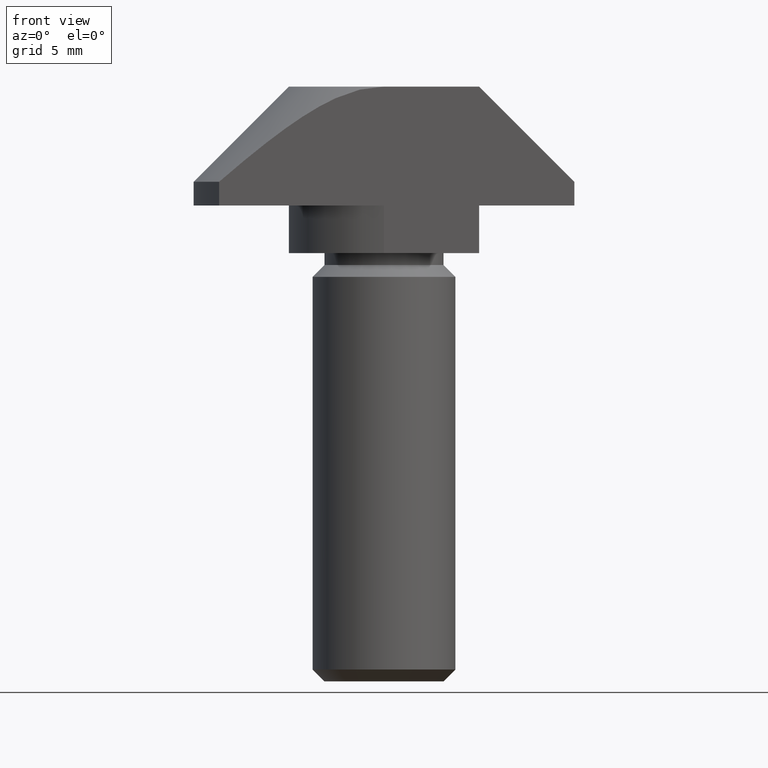
[diagram: clean part render]
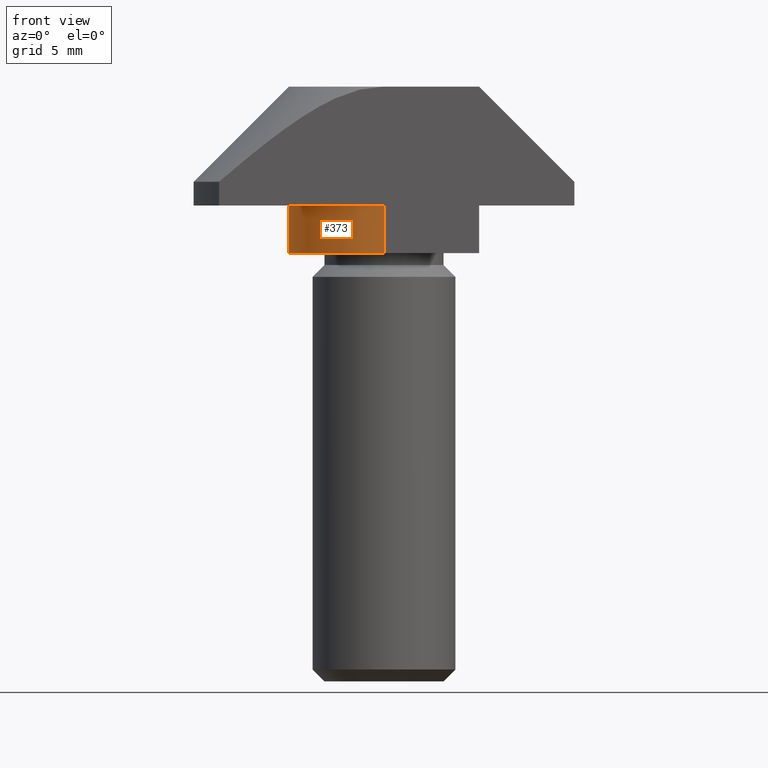
[diagram: same view with one face highlighted and labeled with its STEP entity id]
A machine part, front view. The second image highlights one B-rep face of the part: STEP entity #373.
In plain terms, the highlighted cylindrical surface (partial cylindrical patch) has radius 4 mm, axis along (0, 0, -1).
Its self-contained STEP definition (entity closure, byte-faithful):
#20=LINE('',#566,#54);
#21=LINE('',#572,#55);
#54=VECTOR('',#457,2.);
#55=VECTOR('',#464,2.);
#100=CYLINDRICAL_SURFACE('',#403,3.99999999999997);
#115=FACE_OUTER_BOUND('',#142,.T.);
#142=EDGE_LOOP('',(#274,#275,#276,#277));
#165=CIRCLE('',#404,3.99999999999997);
#166=CIRCLE('',#405,3.99999999999997);
#181=VERTEX_POINT('',#560);
#183=VERTEX_POINT('',#564);
#184=VERTEX_POINT('',#568);
#185=VERTEX_POINT('',#570);
#218=EDGE_CURVE('',#181,#183,#20,.T.);
#219=EDGE_CURVE('',#181,#184,#165,.T.);
#220=EDGE_CURVE('',#185,#183,#166,.T.);
#221=EDGE_CURVE('',#184,#185,#21,.T.);
#274=ORIENTED_EDGE('',*,*,#219,.F.);
#275=ORIENTED_EDGE('',*,*,#218,.T.);
#276=ORIENTED_EDGE('',*,*,#220,.F.);
#277=ORIENTED_EDGE('',*,*,#221,.F.);
#373=ADVANCED_FACE('',(#115),#100,.T.);
#403=AXIS2_PLACEMENT_3D('',#567,#458,#459);
#404=AXIS2_PLACEMENT_3D('',#569,#460,#461);
#405=AXIS2_PLACEMENT_3D('',#571,#462,#463);
#457=DIRECTION('',(0.,0.,-1.));
#458=DIRECTION('center_axis',(0.,0.,-1.));
#459=DIRECTION('ref_axis',(-4.99600361081323E-15,1.,0.));
#460=DIRECTION('center_axis',(0.,0.,1.));
#461=DIRECTION('ref_axis',(-4.99600361081323E-15,1.,0.));
#462=DIRECTION('center_axis',(0.,0.,-1.));
#463=DIRECTION('ref_axis',(-4.99600361081323E-15,1.,0.));
#464=DIRECTION('',(0.,0.,-1.));
#560=CARTESIAN_POINT('',(-4.,-1.49880108324396E-14,-5.));
#564=CARTESIAN_POINT('',(-4.,-1.49880108324396E-14,-7.));
#566=CARTESIAN_POINT('',(-4.,-1.49880108324396E-14,-5.));
#567=CARTESIAN_POINT('Origin',(-1.99840144432528E-14,-1.66533453693773E-14,
-5.));
#568=CARTESIAN_POINT('',(0.,-3.99999999999999,-5.));
#569=CARTESIAN_POINT('Origin',(-1.99840144432528E-14,-1.66533453693773E-14,
-5.));
#570=CARTESIAN_POINT('',(0.,-3.99999999999999,-7.));
#571=CARTESIAN_POINT('Origin',(-1.99840144432528E-14,-1.66533453693773E-14,
-7.));
#572=CARTESIAN_POINT('',(0.,-3.99999999999999,-5.));